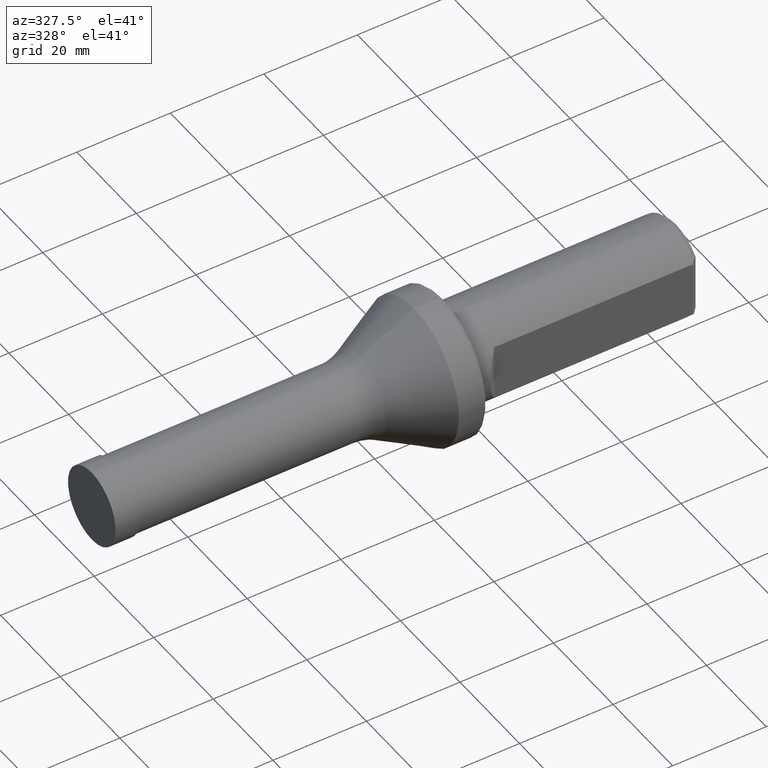
[diagram: clean part render]
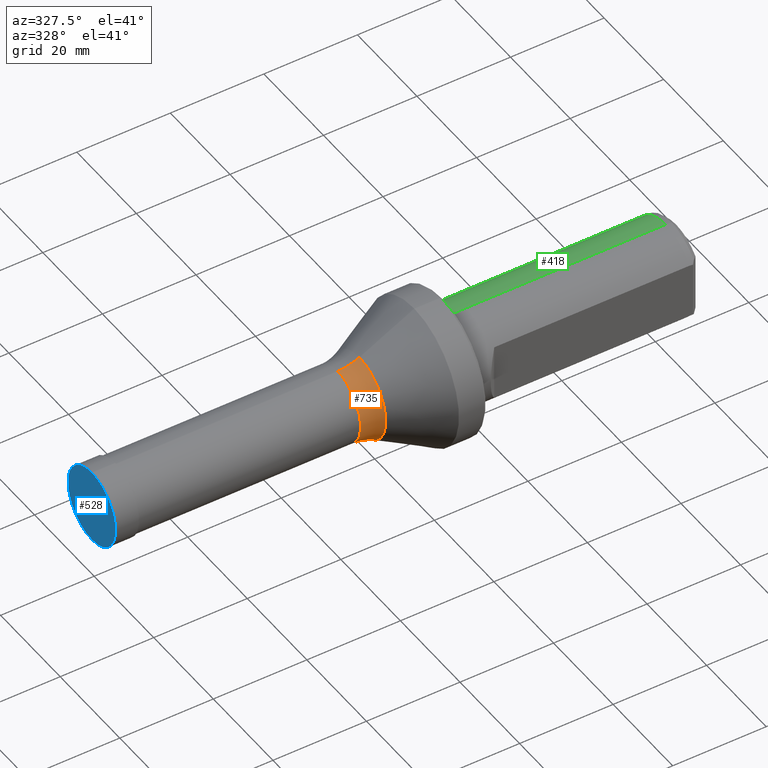
[diagram: same view with three faces highlighted in distinct colors, each labeled with its STEP entity id]
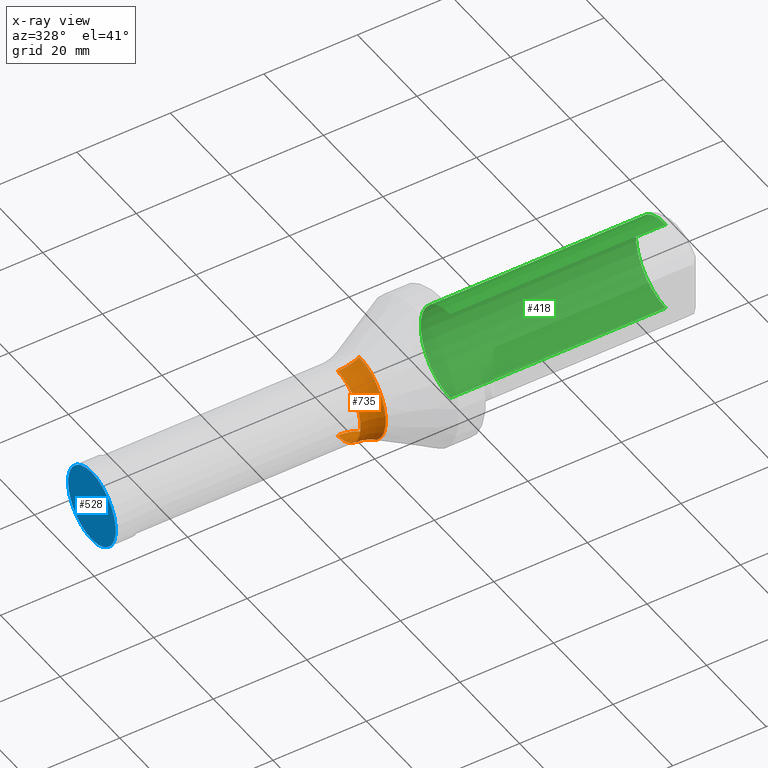
[diagram: x-ray of the same camera — body ghosted, the three highlighted faces saturated]
A machine part, auxiliary view with three faces highlighted in distinct colors.
The next image is the same camera in x-ray (body ghosted, the three faces saturated) — at least one of them is partly hidden behind the body in this view.
Their STEP definitions:

[orange] entity #735 — the highlighted toroidal blend (fillet) surface has major radius 17.7 mm and minor (blend) radius 10 mm.
#5 = VERTEX_POINT ( 'NONE', #1085 ) ;
#66 = ORIENTED_EDGE ( 'NONE', *, *, #1004, .T. ) ;
#92 = EDGE_CURVE ( 'NONE', #5, #742, #265, .T. ) ;
#116 = DIRECTION ( 'NONE',  ( -1.000000000000000000, -0.0000000000000000000, -0.0000000000000000000 ) ) ;
#121 = AXIS2_PLACEMENT_3D ( 'NONE', #669, #850, #762 ) ;
#146 = CARTESIAN_POINT ( 'NONE',  ( 52.06400000000000000, 2.167624834490815400E-015, -17.69999999999999900 ) ) ;
#153 = VERTEX_POINT ( 'NONE', #646 ) ;
#220 = EDGE_LOOP ( 'NONE', ( #757, #66, #287, #436 ) ) ;
#265 = CIRCLE ( 'NONE', #1057, 8.843447547925066500 ) ;
#270 = DIRECTION ( 'NONE',  ( -1.000000000000000000, -0.0000000000000000000, -0.0000000000000000000 ) ) ;
#287 = ORIENTED_EDGE ( 'NONE', *, *, #92, .T. ) ;
#356 = AXIS2_PLACEMENT_3D ( 'NONE', #577, #1150, #500 ) ;
#380 = CARTESIAN_POINT ( 'NONE',  ( 56.70743393014754500, 0.0000000000000000000, 8.843447547925066500 ) ) ;
#401 = EDGE_CURVE ( 'NONE', #802, #742, #617, .T. ) ;
#436 = ORIENTED_EDGE ( 'NONE', *, *, #401, .F. ) ;
#500 = DIRECTION ( 'NONE',  ( 0.0000000000000000000, 0.0000000000000000000, 1.000000000000000000 ) ) ;
#504 = CARTESIAN_POINT ( 'NONE',  ( 52.06400000000000000, 0.0000000000000000000, 0.0000000000000000000 ) ) ;
#516 = DIRECTION ( 'NONE',  ( 0.0000000000000000000, -1.224646799147353200E-016, 1.000000000000000000 ) ) ;
#525 = CIRCLE ( 'NONE', #356, 7.700000000000000200 ) ;
#543 = TOROIDAL_SURFACE ( 'NONE', #983, 17.69999999999999900, 9.999999999999998200 ) ;
#577 = CARTESIAN_POINT ( 'NONE',  ( 52.06400000000000000, 0.0000000000000000000, 0.0000000000000000000 ) ) ;
#617 = CIRCLE ( 'NONE', #121, 9.999999999999998200 ) ;
#621 = FACE_OUTER_BOUND ( 'NONE', #220, .T. ) ;
#646 = CARTESIAN_POINT ( 'NONE',  ( 52.06400000000000000, 9.429780353434619000E-016, -7.700000000000000200 ) ) ;
#647 = CARTESIAN_POINT ( 'NONE',  ( 52.06400000000000000, 0.0000000000000000000, 7.700000000000000200 ) ) ;
#669 = CARTESIAN_POINT ( 'NONE',  ( 52.06400000000000000, 0.0000000000000000000, 17.69999999999999900 ) ) ;
#681 = EDGE_CURVE ( 'NONE', #153, #802, #525, .T. ) ;
#701 = DIRECTION ( 'NONE',  ( 0.0000000000000000000, 0.0000000000000000000, 1.000000000000000000 ) ) ;
#706 = DIRECTION ( 'NONE',  ( -0.0000000000000000000, 1.000000000000000000, 1.224646799147353200E-016 ) ) ;
#735 = ADVANCED_FACE ( 'NONE', ( #621 ), #543, .F. ) ;
#742 = VERTEX_POINT ( 'NONE', #380 ) ;
#757 = ORIENTED_EDGE ( 'NONE', *, *, #681, .F. ) ;
#762 = DIRECTION ( 'NONE',  ( 0.0000000000000000000, 0.0000000000000000000, -1.000000000000000000 ) ) ;
#772 = CIRCLE ( 'NONE', #1083, 9.999999999999998200 ) ;
#802 = VERTEX_POINT ( 'NONE', #647 ) ;
#834 = CARTESIAN_POINT ( 'NONE',  ( 56.70743393014754500, 0.0000000000000000000, 0.0000000000000000000 ) ) ;
#850 = DIRECTION ( 'NONE',  ( 0.0000000000000000000, -1.000000000000000000, 0.0000000000000000000 ) ) ;
#927 = DIRECTION ( 'NONE',  ( 0.0000000000000000000, 0.0000000000000000000, 1.000000000000000000 ) ) ;
#983 = AXIS2_PLACEMENT_3D ( 'NONE', #504, #116, #701 ) ;
#1004 = EDGE_CURVE ( 'NONE', #153, #5, #772, .T. ) ;
#1057 = AXIS2_PLACEMENT_3D ( 'NONE', #834, #270, #927 ) ;
#1083 = AXIS2_PLACEMENT_3D ( 'NONE', #146, #706, #516 ) ;
#1085 = CARTESIAN_POINT ( 'NONE',  ( 56.70743393014754500, 1.083009973299394400E-015, -8.843447547925066500 ) ) ;
#1150 = DIRECTION ( 'NONE',  ( -1.000000000000000000, -0.0000000000000000000, -0.0000000000000000000 ) ) ;

[blue] entity #528 — the highlighted planar face has unit normal (1, 0, 0).
#169 = DIRECTION ( 'NONE',  ( 0.0000000000000000000, 0.0000000000000000000, 1.000000000000000000 ) ) ;
#197 = CARTESIAN_POINT ( 'NONE',  ( -0.5000000000000002200, 1.985000000000000300, 0.0000000000000000000 ) ) ;
#214 = DIRECTION ( 'NONE',  ( 0.0000000000000000000, 0.0000000000000000000, 1.000000000000000000 ) ) ;
#244 = EDGE_CURVE ( 'NONE', #635, #623, #991, .T. ) ;
#313 = CARTESIAN_POINT ( 'NONE',  ( -0.5000000000000002200, 0.0000000000000000000, 0.0000000000000000000 ) ) ;
#329 = AXIS2_PLACEMENT_3D ( 'NONE', #737, #830, #169 ) ;
#389 = ORIENTED_EDGE ( 'NONE', *, *, #244, .T. ) ;
#460 = EDGE_LOOP ( 'NONE', ( #389, #1200 ) ) ;
#528 = ADVANCED_FACE ( 'NONE', ( #711 ), #982, .F. ) ;
#579 = AXIS2_PLACEMENT_3D ( 'NONE', #313, #873, #214 ) ;
#586 = CARTESIAN_POINT ( 'NONE',  ( -0.5000000000000002200, 9.797174393178825700E-016, -8.000000000000000000 ) ) ;
#596 = CARTESIAN_POINT ( 'NONE',  ( -0.5000000000000002200, 0.0000000000000000000, 8.000000000000000000 ) ) ;
#623 = VERTEX_POINT ( 'NONE', #586 ) ;
#635 = VERTEX_POINT ( 'NONE', #596 ) ;
#711 = FACE_OUTER_BOUND ( 'NONE', #460, .T. ) ;
#737 = CARTESIAN_POINT ( 'NONE',  ( -0.5000000000000002200, 0.0000000000000000000, 0.0000000000000000000 ) ) ;
#830 = DIRECTION ( 'NONE',  ( -1.000000000000000000, 0.0000000000000000000, 0.0000000000000000000 ) ) ;
#831 = EDGE_CURVE ( 'NONE', #623, #635, #841, .T. ) ;
#841 = CIRCLE ( 'NONE', #329, 8.000000000000000000 ) ;
#873 = DIRECTION ( 'NONE',  ( -1.000000000000000000, 0.0000000000000000000, 0.0000000000000000000 ) ) ;
#944 = AXIS2_PLACEMENT_3D ( 'NONE', #197, #989, #1066 ) ;
#982 = PLANE ( 'NONE',  #944 ) ;
#989 = DIRECTION ( 'NONE',  ( 1.000000000000000000, 0.0000000000000000000, 0.0000000000000000000 ) ) ;
#991 = CIRCLE ( 'NONE', #579, 8.000000000000000000 ) ;
#1066 = DIRECTION ( 'NONE',  ( 0.0000000000000000000, 0.0000000000000000000, -1.000000000000000000 ) ) ;
#1200 = ORIENTED_EDGE ( 'NONE', *, *, #831, .T. ) ;

[green] entity #418 — the highlighted cylindrical surface (partial cylindrical patch) has radius 10 mm, axis along (-1, -0, -0).
#64 = EDGE_LOOP ( 'NONE', ( #1025, #855, #105, #994 ) ) ;
#79 = EDGE_CURVE ( 'NONE', #541, #284, #734, .T. ) ;
#105 = ORIENTED_EDGE ( 'NONE', *, *, #218, .T. ) ;
#188 = DIRECTION ( 'NONE',  ( -1.000000000000000000, -0.0000000000000000000, -0.0000000000000000000 ) ) ;
#205 = LINE ( 'NONE', #1039, #916 ) ;
#207 = AXIS2_PLACEMENT_3D ( 'NONE', #867, #486, #1060 ) ;
#218 = EDGE_CURVE ( 'NONE', #998, #761, #799, .T. ) ;
#252 = VECTOR ( 'NONE', #1056, 1000.000000000000000 ) ;
#284 = VERTEX_POINT ( 'NONE', #594 ) ;
#315 = AXIS2_PLACEMENT_3D ( 'NONE', #853, #1143, #859 ) ;
#387 = EDGE_CURVE ( 'NONE', #541, #761, #205, .T. ) ;
#388 = CARTESIAN_POINT ( 'NONE',  ( -0.5000000000000005600, 1.224646799147353300E-015, -10.00000000000000000 ) ) ;
#406 = CYLINDRICAL_SURFACE ( 'NONE', #315, 10.00000000000000000 ) ;
#418 = ADVANCED_FACE ( 'NONE', ( #942 ), #406, .T. ) ;
#473 = CARTESIAN_POINT ( 'NONE',  ( 122.2000000000001700, 0.0000000000000000000, 10.00000000000000000 ) ) ;
#486 = DIRECTION ( 'NONE',  ( 1.000000000000000000, -0.0000000000000000000, -0.0000000000000000000 ) ) ;
#520 = CARTESIAN_POINT ( 'NONE',  ( 76.17953698905209600, 0.0000000000000000000, -10.00000000000000000 ) ) ;
#540 = CARTESIAN_POINT ( 'NONE',  ( 122.2000000000001700, 0.0000000000000000000, 0.0000000000000000000 ) ) ;
#541 = VERTEX_POINT ( 'NONE', #473 ) ;
#594 = CARTESIAN_POINT ( 'NONE',  ( 122.2000000000001700, 1.224646799147353300E-015, -10.00000000000000000 ) ) ;
#641 = DIRECTION ( 'NONE',  ( 0.0000000000000000000, 0.0000000000000000000, 1.000000000000000000 ) ) ;
#644 = EDGE_CURVE ( 'NONE', #284, #998, #712, .T. ) ;
#712 = LINE ( 'NONE', #388, #252 ) ;
#734 = CIRCLE ( 'NONE', #930, 10.00000000000000000 ) ;
#761 = VERTEX_POINT ( 'NONE', #848 ) ;
#799 = CIRCLE ( 'NONE', #207, 10.00000000000000000 ) ;
#848 = CARTESIAN_POINT ( 'NONE',  ( 76.17953698905209600, 1.224646799147353300E-015, 10.00000000000000000 ) ) ;
#853 = CARTESIAN_POINT ( 'NONE',  ( -0.5000000000000005600, 0.0000000000000000000, 0.0000000000000000000 ) ) ;
#855 = ORIENTED_EDGE ( 'NONE', *, *, #644, .T. ) ;
#859 = DIRECTION ( 'NONE',  ( 0.0000000000000000000, 0.0000000000000000000, 1.000000000000000000 ) ) ;
#867 = CARTESIAN_POINT ( 'NONE',  ( 76.17953698905209600, 0.0000000000000000000, 0.0000000000000000000 ) ) ;
#916 = VECTOR ( 'NONE', #188, 1000.000000000000000 ) ;
#930 = AXIS2_PLACEMENT_3D ( 'NONE', #540, #1213, #641 ) ;
#942 = FACE_OUTER_BOUND ( 'NONE', #64, .T. ) ;
#994 = ORIENTED_EDGE ( 'NONE', *, *, #387, .F. ) ;
#998 = VERTEX_POINT ( 'NONE', #520 ) ;
#1025 = ORIENTED_EDGE ( 'NONE', *, *, #79, .T. ) ;
#1039 = CARTESIAN_POINT ( 'NONE',  ( -0.5000000000000005600, 0.0000000000000000000, 10.00000000000000000 ) ) ;
#1056 = DIRECTION ( 'NONE',  ( -1.000000000000000000, -0.0000000000000000000, -0.0000000000000000000 ) ) ;
#1060 = DIRECTION ( 'NONE',  ( 0.0000000000000000000, 0.0000000000000000000, -1.000000000000000000 ) ) ;
#1143 = DIRECTION ( 'NONE',  ( -1.000000000000000000, -0.0000000000000000000, -0.0000000000000000000 ) ) ;
#1213 = DIRECTION ( 'NONE',  ( -1.000000000000000000, -0.0000000000000000000, -0.0000000000000000000 ) ) ;